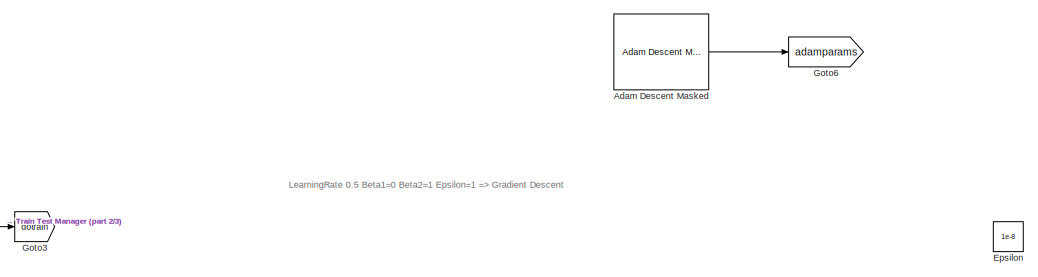
[diagram: root canvas - part 1/3, top center region]
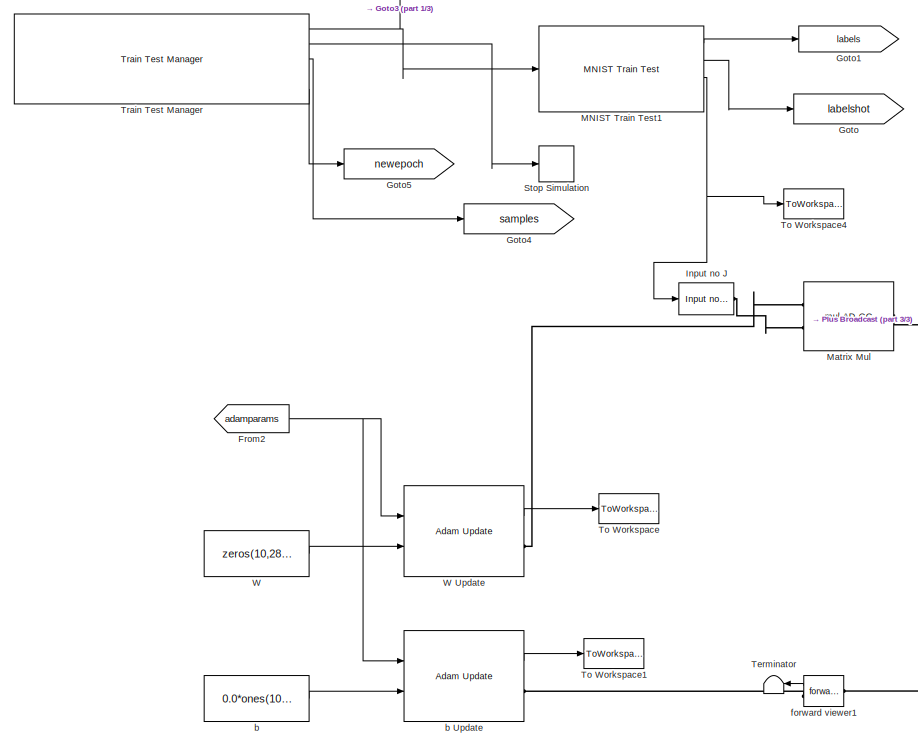
[diagram: root canvas - part 2/3, middle left region]
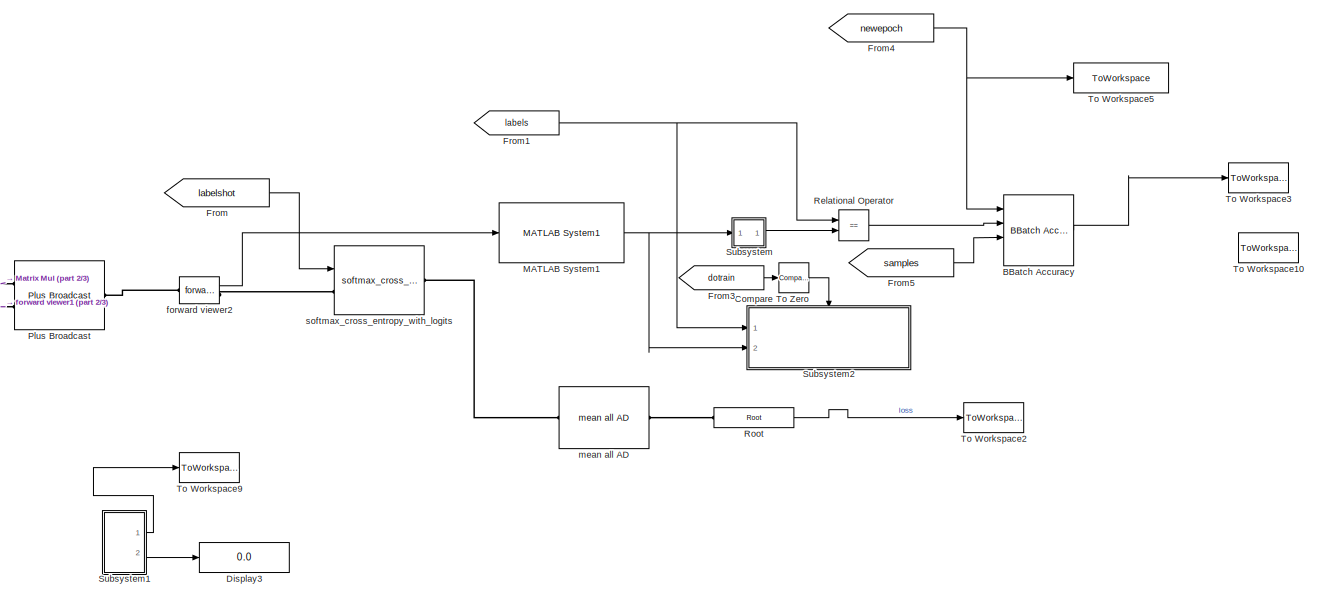
[diagram: root canvas - part 3/3, middle right region]
MODEL slx_92c580cccfb8
KIND model
CONFIG AbsTol = auto
CONFIG EnableMultiTasking = off
CONFIG FixedStep = 1
CONFIG MaxStep = auto
CONFIG MinStep = auto
CONFIG RelTol = 1e-3
CONFIG SampleTimeConstraint = Unconstrained
CONFIG Solver = FixedStepDiscrete
CONFIG SolverName = FixedStepDiscrete
CONFIG StartTime = 0.0
CONFIG StopTime = Inf
WORKSPACE source: MATLAB code (in-file)
WORKSPACE batchsize = 100
WORKSPACE learningrate = 0.5
WORKSPACE epochs = 5
BLOCK [Reference] Adam Descent Masked  REF=ad_blocks/Adam Descent Masked  (lib defined in slx_3af8d3de87d3)
  Ports = [0, 1]
  SourceBlock = ad_blocks/Adam Descent Masked
BLOCK [Reference] BBatch Accuracy  REF=ad_blocks/BBatch Accuracy  (lib defined in slx_3af8d3de87d3)
  Ports = [4, 1]
  SourceBlock = ad_blocks/BBatch Accuracy
  SourceType = SubSystem
BLOCK [Reference] Compare To Zero  REF=simulink/Logic and Bit
Operations/Compare
To Zero
  Ports = [1, 1]
  SourceBlock = simulink/Logic and Bit\nOperations/Compare\nTo Zero
  SourceProductBaseCode = SL
  SourceProductName = Simulink
  SourceType = Compare To Zero
BLOCK [Display] Display3
  Decimation = 1
  Ports = [1]
BLOCK [Constant] Epsilon
  Commented = on
  Value = 1e-8
BLOCK [From] From
  GotoTag = labelshot
BLOCK [From] From1
  GotoTag = labels
BLOCK [From] From2
  GotoTag = adamparams
BLOCK [From] From3
  GotoTag = dotrain
  TagVisibility = global
BLOCK [From] From4
  GotoTag = newepoch
BLOCK [From] From5
  GotoTag = samples
BLOCK [Goto] Goto
  GotoTag = labelshot
BLOCK [Goto] Goto1
  GotoTag = labels
BLOCK [Goto] Goto3
  GotoTag = dotrain
  TagVisibility = global
BLOCK [Goto] Goto4
  GotoTag = samples
BLOCK [Goto] Goto5
  GotoTag = newepoch
BLOCK [Goto] Goto6
  GotoTag = adamparams
BLOCK [Reference] Input no J  REF=ad_blocks/Input no J  (lib defined in slx_3af8d3de87d3)
  Ports = [1, 0, 0, 0, 0, 0, 1]
  SourceBlock = ad_blocks/Input no J
BLOCK [Reference] MATLAB System1  REF=ad_blocks/MATLAB System1  (lib defined in slx_3af8d3de87d3)
  Ports = [1, 1]
  SourceBlock = ad_blocks/MATLAB System1
  SourceType = ArgmaxSystemD2
BLOCK [Reference] MNIST Train Test1  REF=ad_blocks/MNIST Train Test  (lib defined in slx_3af8d3de87d3)
  Ports = [1, 4]
  SourceBlock = ad_blocks/MNIST Train Test
  SourceType = SubSystem
BLOCK [Reference] Matrix Mul  REF=ad_blocks/mul AD CC  (lib defined in slx_3af8d3de87d3)
  Ports = [0, 0, 0, 0, 0, 2, 1]
  SourceBlock = ad_blocks/mul AD CC
  SourceType = SubSystem
BLOCK [Reference] Plus Broadcast  REF=ad_blocks/Plus Broadcast  (lib defined in slx_3af8d3de87d3)
  Ports = [0, 0, 0, 0, 0, 2, 1]
  SourceBlock = ad_blocks/Plus Broadcast
  SourceType = SubSystem
BLOCK [RelationalOperator] Relational Operator
  InputSameDT = off
  Operator = ==
  OutDataTypeStr = boolean
  Ports = [2, 1]
  RndMeth = Simplest
BLOCK [Reference] Root  REF=ad_blocks/Root  (lib defined in slx_3af8d3de87d3)
  Description = Top level AD block: gets the incoming value, pushes the scalar 1 gradient
  Ports = [0, 1, 0, 0, 0, 1]
  SourceBlock = ad_blocks/Root
BLOCK [Stop] Stop Simulation
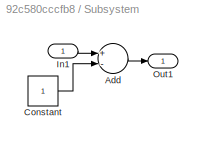
BLOCK [SubSystem] Subsystem
  Ports = [1, 1]
  RequestExecContextInheritance = off
  Variant = off
BLOCK [Sum] Subsystem/Add
  InputSameDT = off
  Inputs = +-
  OutDataTypeStr = Inherit: Inherit via internal rule
  Ports = [2, 1]
  SaturateOnIntegerOverflow = off
BLOCK [Constant] Subsystem/Constant
  OutDataTypeStr = Inherit: Inherit via back propagation
BLOCK [Inport] Subsystem/In1
  IconDisplay = Port number
BLOCK [Outport] Subsystem/Out1
  IconDisplay = Port number
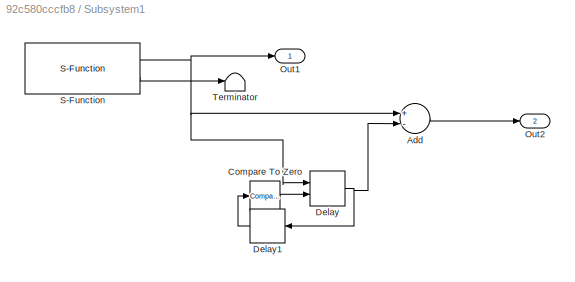
BLOCK [SubSystem] Subsystem1
  Ports = [0, 2]
  RequestExecContextInheritance = off
  Variant = off
BLOCK [Sum] Subsystem1/Add
  InputSameDT = off
  Inputs = +-
  OutDataTypeStr = Inherit: Inherit via internal rule
  Ports = [2, 1]
  SaturateOnIntegerOverflow = off
BLOCK [Reference] Subsystem1/Compare To Zero  REF=simulink/Logic and Bit
Operations/Compare
To Zero
  Ports = [1, 1]
  SourceBlock = simulink/Logic and Bit\nOperations/Compare\nTo Zero
  SourceProductBaseCode = SL
  SourceProductName = Simulink
  SourceType = Compare To Zero
BLOCK [Delay] Subsystem1/Delay
  DelayLength = 1
  InitialCondition = 0
  InputPortMap = u0,e6
  Ports = [2, 1]
  ShowEnablePort = on
BLOCK [Delay] Subsystem1/Delay1
  DelayLength = 1
  InitialCondition = 0
  InputPortMap = u0
  Ports = [1, 1]
BLOCK [Outport] Subsystem1/Out1
  IconDisplay = Port number
BLOCK [Outport] Subsystem1/Out2
  IconDisplay = Port number
  Port = 2
BLOCK [S-Function] Subsystem1/S-Function
  EnableBusSupport = off
  FunctionName = SyncTime
  Parameters = dt
  Ports = [0, 2]
  Priority = 1024
  SFcnIsStateOwnerBlock = off
  SFunctionDeploymentMode = off
BLOCK [Terminator] Subsystem1/Terminator
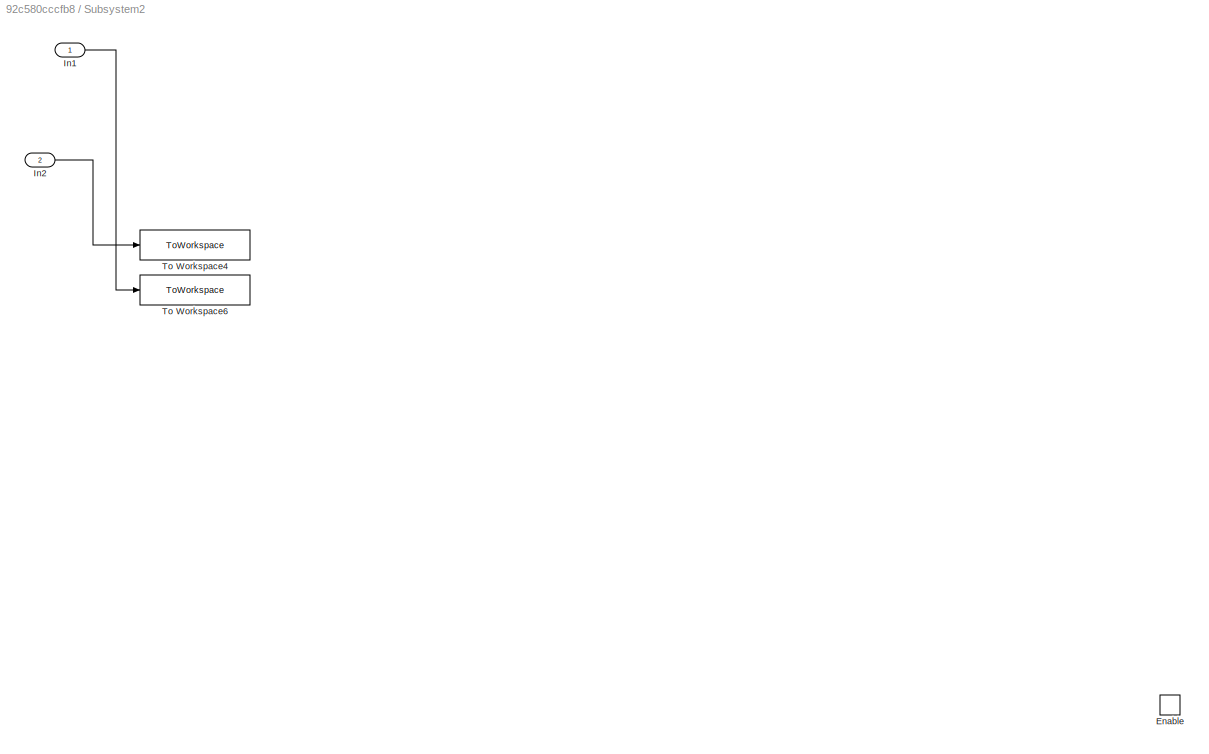
BLOCK [SubSystem] Subsystem2
  Ports = [2, 0, 1]
  RequestExecContextInheritance = off
  Variant = off
BLOCK [EnablePort] Subsystem2/Enable
  Ports = []
BLOCK [Inport] Subsystem2/In1
  IconDisplay = Port number
BLOCK [Inport] Subsystem2/In2
  IconDisplay = Port number
  Port = 2
BLOCK [ToWorkspace] Subsystem2/To Workspace4
  FixptAsFi = on
  MaxDataPoints = inf
  Ports = [1]
  SampleTime = 1
  Save2DSignal = 3-D array (concatenate along third dimension)
  SaveFormat = Timeseries
  VariableName = predictions
BLOCK [ToWorkspace] Subsystem2/To Workspace6
  FixptAsFi = on
  MaxDataPoints = inf
  Ports = [1]
  SampleTime = 1
  Save2DSignal = 3-D array (concatenate along third dimension)
  SaveFormat = Timeseries
  VariableName = correct_predictions
BLOCK [Terminator] Terminator
BLOCK [ToWorkspace] To Workspace
  FixptAsFi = on
  MaxDataPoints = 1
  Ports = [1]
  SampleTime = -1
  Save2DSignal = 3-D array (concatenate along third dimension)
  SaveFormat = Timeseries
  VariableName = Wout
BLOCK [ToWorkspace] To Workspace1
  FixptAsFi = on
  MaxDataPoints = 1
  Ports = [1]
  SampleTime = -1
  Save2DSignal = 3-D array (concatenate along third dimension)
  SaveFormat = Timeseries
  VariableName = bout
BLOCK [ToWorkspace] To Workspace10
  FixptAsFi = on
  MaxDataPoints = 1
  Ports = [1]
  SampleTime = 1
  Save2DSignal = 3-D array (concatenate along third dimension)
  SaveFormat = Timeseries
  VariableName = progress
BLOCK [ToWorkspace] To Workspace2
  FixptAsFi = on
  MaxDataPoints = inf
  Ports = [1]
  SampleTime = 1
  Save2DSignal = 3-D array (concatenate along third dimension)
  SaveFormat = Timeseries
  VariableName = loss
BLOCK [ToWorkspace] To Workspace3
  FixptAsFi = on
  MaxDataPoints = 1
  Ports = [1]
  SampleTime = 1
  Save2DSignal = 3-D array (concatenate along third dimension)
  SaveFormat = Timeseries
  VariableName = accuracy
BLOCK [ToWorkspace] To Workspace4
  FixptAsFi = on
  MaxDataPoints = 1
  Ports = [1]
  SampleTime = -1
  Save2DSignal = 3-D array (concatenate along third dimension)
  SaveFormat = Timeseries
  VariableName = X
BLOCK [ToWorkspace] To Workspace5
  FixptAsFi = on
  MaxDataPoints = 1
  Ports = [1]
  SampleTime = -1
  Save2DSignal = 3-D array (concatenate along third dimension)
  SaveFormat = Timeseries
  VariableName = sim_newepoch
BLOCK [ToWorkspace] To Workspace9
  FixptAsFi = on
  MaxDataPoints = inf
  Ports = [1]
  SampleTime = 1
  Save2DSignal = 3-D array (concatenate along third dimension)
  SaveFormat = Timeseries
  VariableName = realtout
BLOCK [Reference] Train Test Manager  REF=ad_blocks/Train Test Manager  (lib defined in slx_3af8d3de87d3)
  Ports = [0, 5]
  SourceBlock = ad_blocks/Train Test Manager
  SourceType = train_test_mgr
BLOCK [Constant] W
  OutDataTypeStr = single
  Value = zeros(10,28*28)
BLOCK [Reference] W Update  REF=ad_blocks/Adam Update  (lib defined in slx_3af8d3de87d3)
  Ports = [2, 1, 0, 0, 0, 0, 1]
  SourceBlock = ad_blocks/Adam Update
  SourceType = SubSystem
BLOCK [Constant] b
  OutDataTypeStr = single
  Value = 0.0*ones(10,1)
BLOCK [Reference] b Update  REF=ad_blocks/Adam Update  (lib defined in slx_3af8d3de87d3)
  Ports = [2, 1, 0, 0, 0, 0, 1]
  SourceBlock = ad_blocks/Adam Update
  SourceType = SubSystem
BLOCK [Reference] forward viewer1  REF=ad_blocks/forward viewer  (lib defined in slx_3af8d3de87d3)
  Ports = [0, 1, 0, 0, 0, 1, 1]
  SourceBlock = ad_blocks/forward viewer
BLOCK [Reference] forward viewer2  REF=ad_blocks/forward viewer  (lib defined in slx_3af8d3de87d3)
  Ports = [0, 1, 0, 0, 0, 1, 1]
  SourceBlock = ad_blocks/forward viewer
BLOCK [Reference] mean all AD  REF=ad_blocks/mean all AD  (lib defined in slx_3af8d3de87d3)
  Ports = [0, 0, 0, 0, 0, 1, 1]
  SourceBlock = ad_blocks/mean all AD
  SourceType = SubSystem
BLOCK [Reference] softmax_cross_entropy_with_logits  REF=ad_blocks/softmax_cross_entropy_with_logits  (lib defined in slx_3af8d3de87d3)
  Ports = [1, 0, 0, 0, 0, 1, 1]
  SourceBlock = ad_blocks/softmax_cross_entropy_with_logits
  SourceType = SubSystem
ANNOTATION (root): LearningRate 0.5 Beta1=0 Beta2=1 Epsilon=1 => Gradient Descent
LINE Adam Descent Masked:1 -> Goto6:1
LINE BBatch Accuracy:1 -> To Workspace3:1
LINE Compare To Zero:1 -> Subsystem2:enable
NET From1:1 -> Relational Operator:1, Subsystem2:1
NET From2:1 -> W Update:1, b Update:1
LINE From3:1 -> Compare To Zero:1
NET From4:1 -> BBatch Accuracy:1, To Workspace5:1
LINE From5:1 -> BBatch Accuracy:3
LINE From:1 -> softmax_cross_entropy_with_logits:1
NET MATLAB System1:1 -> Subsystem2:2, Subsystem:1
LINE MNIST Train Test1:1 -> Goto1:1
LINE MNIST Train Test1:2 -> Goto:1
NET MNIST Train Test1:3 -> Input no J:1, To Workspace4:1
LINE Relational Operator:1 -> BBatch Accuracy:2
LINE Root:1 -> To Workspace2:1
LINE Subsystem/Add:1 -> Subsystem/Out1:1
LINE Subsystem/Constant:1 -> Subsystem/Add:2
LINE Subsystem/In1:1 -> Subsystem/Add:1
LINE Subsystem1/Add:1 -> Subsystem1/Out2:1
LINE Subsystem1/Compare To Zero:1 -> Subsystem1/Delay:2
LINE Subsystem1/Delay1:1 -> Subsystem1/Compare To Zero:1
NET Subsystem1/Delay:1 -> Subsystem1/Add:2, Subsystem1/Delay1:1
NET Subsystem1/S-Function:1 -> Subsystem1/Add:1, Subsystem1/Delay:1, Subsystem1/Out1:1
LINE Subsystem1/S-Function:2 -> Subsystem1/Terminator:1
LINE Subsystem1:1 -> To Workspace9:1
LINE Subsystem1:2 -> Display3:1
LINE Subsystem2/In1:1 -> Subsystem2/To Workspace6:1
LINE Subsystem2/In2:1 -> Subsystem2/To Workspace4:1
LINE Subsystem:1 -> Relational Operator:2
NET Train Test Manager:1 -> Goto3:1, MNIST Train Test1:1
LINE Train Test Manager:2 -> Stop Simulation:1
LINE Train Test Manager:3 -> Goto4:1
LINE Train Test Manager:5 -> Goto5:1
LINE W Update:1 -> To Workspace:1
LINE W:1 -> W Update:2
LINE b Update:1 -> To Workspace1:1
LINE b:1 -> b Update:2
LINE forward viewer1:1 -> Terminator:1
LINE forward viewer2:1 -> MATLAB System1:1
PLINE Input no J:RConn1 -- Matrix Mul:LConn2
PLINE Matrix Mul:LConn1 -- W Update:RConn1
PLINE Matrix Mul:RConn1 -- Plus Broadcast:LConn1
PLINE Plus Broadcast:LConn2 -- forward viewer1:LConn1
PLINE Plus Broadcast:RConn1 -- forward viewer2:LConn1
PLINE Root:LConn1 -- mean all AD:RConn1
PLINE b Update:RConn1 -- forward viewer1:RConn1
PLINE forward viewer2:RConn1 -- softmax_cross_entropy_with_logits:LConn1
PLINE mean all AD:LConn1 -- softmax_cross_entropy_with_logits:RConn1
note: NET lines group one-source signal fan-out (src -> all destinations, sorted); 1:1 wires keep LINE
